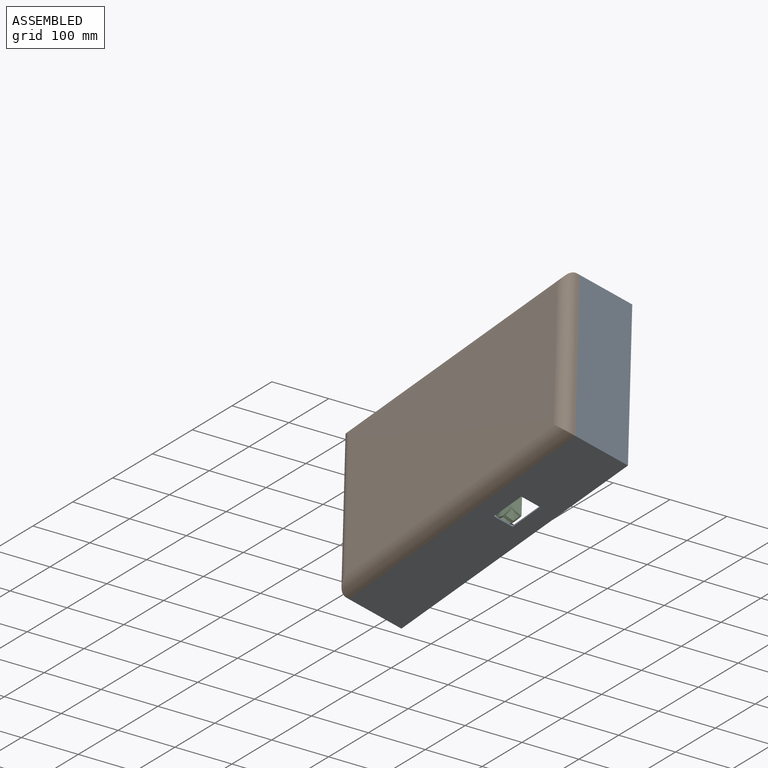
[diagram: assembled view]
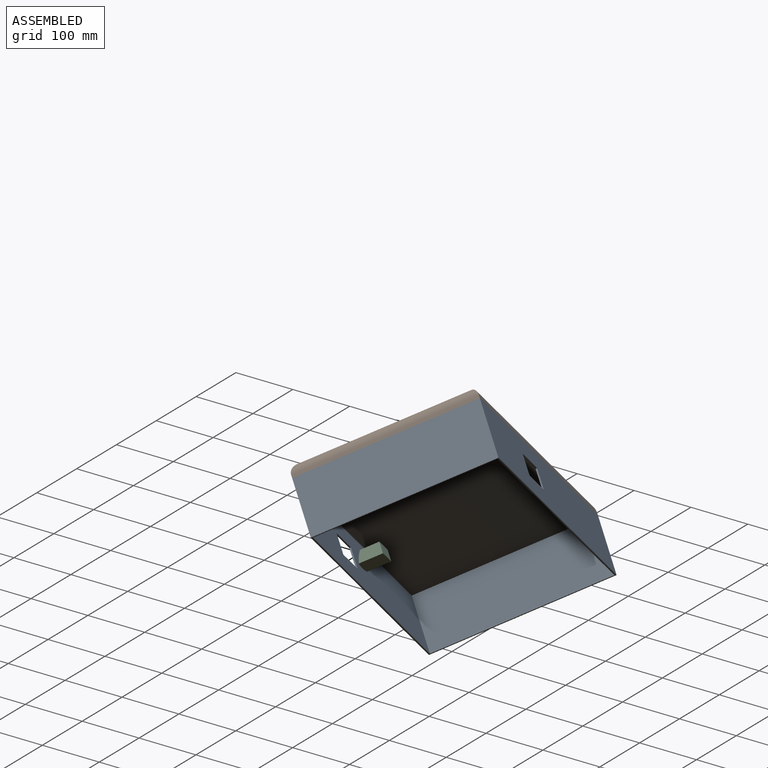
[diagram: assembled view, second angle]
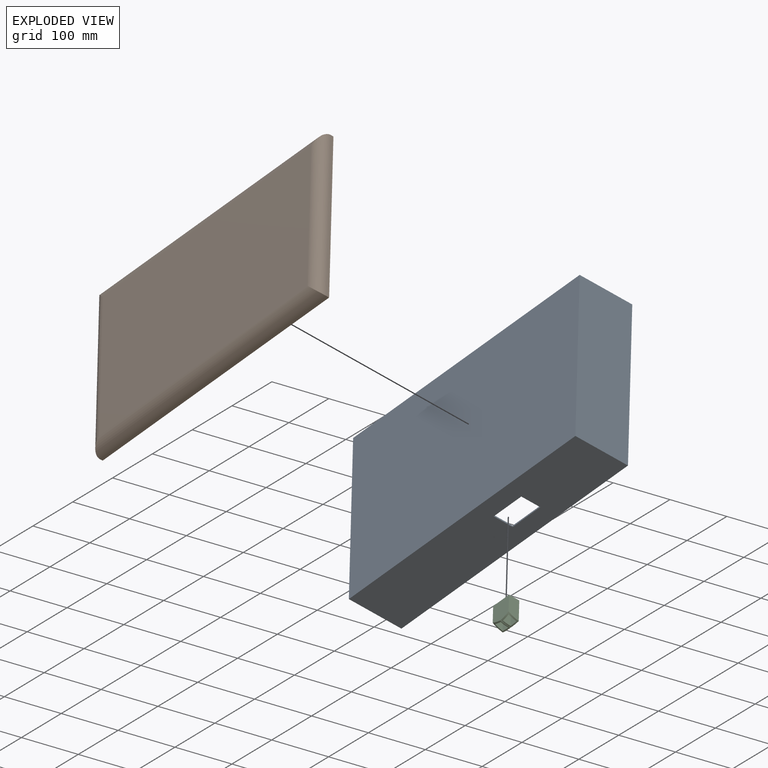
[diagram: exploded view]
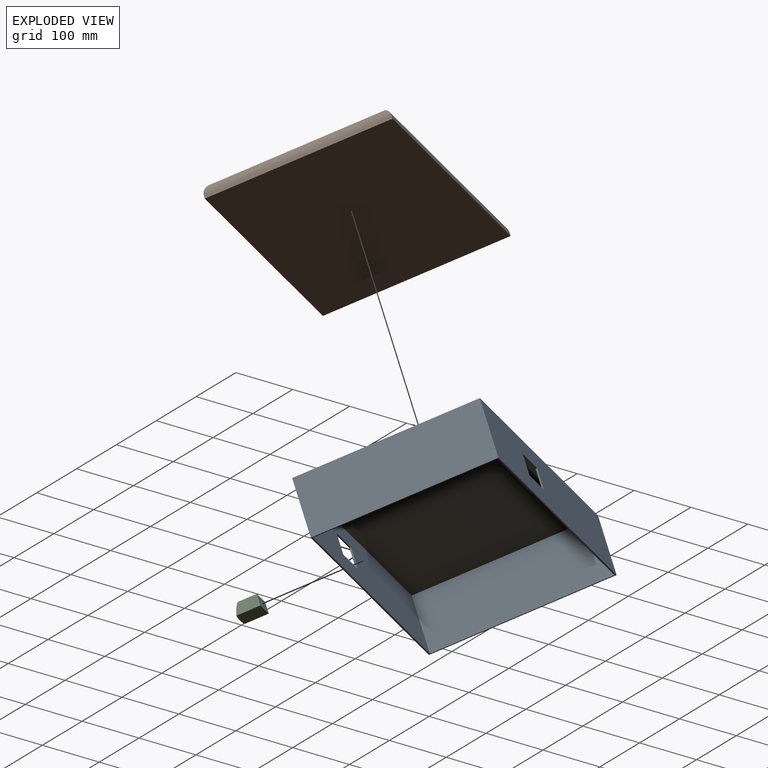
[diagram: exploded view, second angle]
ASSEMBLY  parts=3 mates=3
PART A: 19 faces, bbox 500x300x100 mm
  f0: plane 500x300mm, normal (0,0,-1), area 3975mm2, adj f1,f2,f3,f4,f6,f7,f8,f9
  f1: plane 500x100mm, normal (0,1,0), area 47819.2mm2, adj f0,f2,f4,f5,f15,f16,f17,f18
  f2: plane 300x100mm, normal (-1,0,0), area 30000mm2, adj f0,f1,f3,f5
  f3: plane 500x100mm, normal (0,-1,0), area 47819.2mm2, adj f0,f2,f4,f5,f11,f12,f13,f14
  f4: plane 300x100mm, normal (1,0,0), area 30000mm2, adj f0,f1,f3,f5
  f5: plane 500x300mm, normal (0,0,1), area 150000mm2, adj f1,f2,f3,f4
  f6: plane 495x97.5mm, normal (0,-1,0), area 46081.7mm2, adj f0,f7,f9,f10,f15,f16,f17,f18
  f7: plane 295x97.5mm, normal (1,0,0), area 28762.5mm2, adj f0,f6,f8,f10
  f8: plane 495x97.5mm, normal (0,1,0), area 46081.7mm2, adj f0,f7,f9,f10,f11,f12,f13,f14
  f9: plane 295x97.5mm, normal (-1,0,0), area 28762.5mm2, adj f0,f6,f8,f10
  f10: plane 495x295mm, normal (0,0,-1), area 146025mm2, adj f6,f7,f8,f9
  f11: plane 60.77x2.5mm, normal (0,0,1), area 151.9mm2, adj f3,f8,f12,f14
  f12: plane 35.89x2.5mm, normal (1,0,0), area 89.7mm2, adj f3,f8,f11,f13
  f13: plane 60.77x2.5mm, normal (0,0,-1), area 151.9mm2, adj f3,f8,f12,f14
  f14: plane 35.89x2.5mm, normal (-1,0,0), area 89.7mm2, adj f3,f8,f11,f13
  f15: plane 35.89x2.5mm, normal (-1,0,0), area 89.7mm2, adj f1,f6,f16,f18
  f16: plane 60.77x2.5mm, normal (0,0,-1), area 151.9mm2, adj f1,f6,f15,f17
  f17: plane 35.89x2.5mm, normal (1,0,0), area 89.7mm2, adj f1,f6,f16,f18
  f18: plane 60.77x2.5mm, normal (0,0,1), area 151.9mm2, adj f1,f6,f15,f17
PART B: 10 faces, bbox 500x300x25 mm
  f0: plane 500x5mm, normal (0,1,0), area 2500mm2, adj f1,f3,f5,f6
  f1: plane 300x5mm, normal (-1,0,0), area 1500mm2, adj f0,f2,f5,f7
  f2: plane 500x5mm, normal (0,-1,0), area 2500mm2, adj f1,f3,f5,f9
  f3: plane 300x5mm, normal (1,0,0), area 1500mm2, adj f0,f2,f5,f8
  f4: plane 460x260mm, normal (0,0,1), area 119600mm2, adj f6,f7,f8,f9
  f5: plane 500x300mm, normal (0,0,-1), area 150000mm2, adj f0,f1,f2,f3
  f6: cylinder r=20mm len=500mm, axis (1,0,0), area 15251.3mm2, adj f0,f4,f7,f8
  f7: cylinder r=20mm len=300mm, axis (0,1,0), area 8968.1mm2, adj f1,f4,f6,f9
  f8: cylinder r=20mm len=300mm, axis (0,-1,0), area 8968.1mm2, adj f3,f4,f6,f9
  f9: cylinder r=20mm len=500mm, axis (-1,0,0), area 15251.3mm2, adj f2,f4,f7,f8
PART C: 19 faces, bbox 64.4x42x56.6 mm
  f0: torus R=55.51mm, axis (0,-1,0), area 154mm2, adj f1,f2,f3,f4,f6,f7,f8,f10
  f1: plane 37.12x15.61mm, normal (1,0,0), area 492.5mm2, adj f0,f2,f4,f5
  f2: plane 38.15x13.35mm, normal (0,0,1), area 462mm2, adj f0,f1,f3,f5
  f3: plane 38.29x15.45mm, normal (-1,0,0), area 528.4mm2, adj f0,f2,f4,f5
  f4: plane 35.7x13.39mm, normal (0,0,-1), area 416.6mm2, adj f0,f1,f3,f5
  f5: plane 14.49x12.53mm, normal (0,-1,0), area 181.7mm2, adj f1,f2,f3,f4
  f6: plane 40.57x21.6mm, normal (-1,0,0), area 691.9mm2, adj f0,f7,f8,f9
  f7: plane 41.26x36.44mm, normal (0,0,-1), area 1384.8mm2, adj f0,f6,f9,f10,f11,f17,f18
  f8: plane 38.44x36.56mm, normal (0,0,1), area 1209mm2, adj f0,f6,f9,f10,f11,f17,f18
  f9: plane 35.07x19.49mm, normal (0,1,0), area 683.6mm2, adj f6,f7,f8,f17
  f10: bspline ~19.9x4.18mm, area 34.7mm2, adj f0,f7,f8,f18
  f11: torus R=55.51mm, axis (0,-1,0), area 154mm2, adj f7,f8,f12,f13,f14,f15,f17,f18
  f12: plane 37.12x15.61mm, normal (-1,0,0), area 492.5mm2, adj f11,f13,f15,f16
  f13: plane 38.15x13.35mm, normal (0,0,1), area 462mm2, adj f11,f12,f14,f16
  f14: plane 38.29x15.45mm, normal (1,0,0), area 528.4mm2, adj f11,f13,f15,f16
  f15: plane 35.7x13.39mm, normal (0,0,-1), area 416.6mm2, adj f11,f12,f14,f16
  f16: plane 14.49x12.53mm, normal (0,-1,0), area 181.7mm2, adj f12,f13,f14,f15
  f17: plane 40.57x21.6mm, normal (1,0,0), area 691.9mm2, adj f7,f8,f9,f11
  f18: bspline ~19.9x4.18mm, area 34.7mm2, adj f7,f8,f10,f11
PLACE A rot(axis=(0.64,-0.68,0.35),57.5deg) t=(151.23,195.43,-60.96)mm
PLACE B rot(axis=(0.64,-0.68,0.35),57.5deg) t=(151.23,195.43,-60.96)mm
PLACE C rot(axis=(0.64,-0.68,0.35),57.5deg) t=(323.03,262.92,128.15)mm
MATE slider A.f3 <-> C.f9  axis (0.5,-0.75,-0.43) through (334.15,189.7,160.18)mm
MATE slider B.f5 <-> A.f5  axis (0.47,0.65,-0.6) through (212.01,266.37,232.76)mm
MATE fastened B.f5 <-> A.f5  axis (0.47,0.65,-0.6) through (212.01,266.37,232.76)mm
